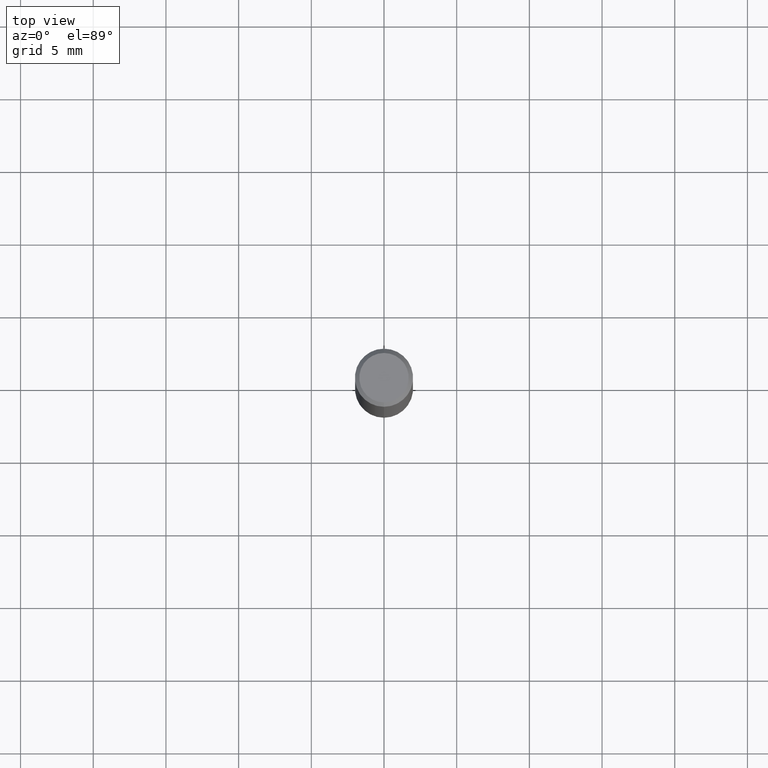
[diagram: clean part render]
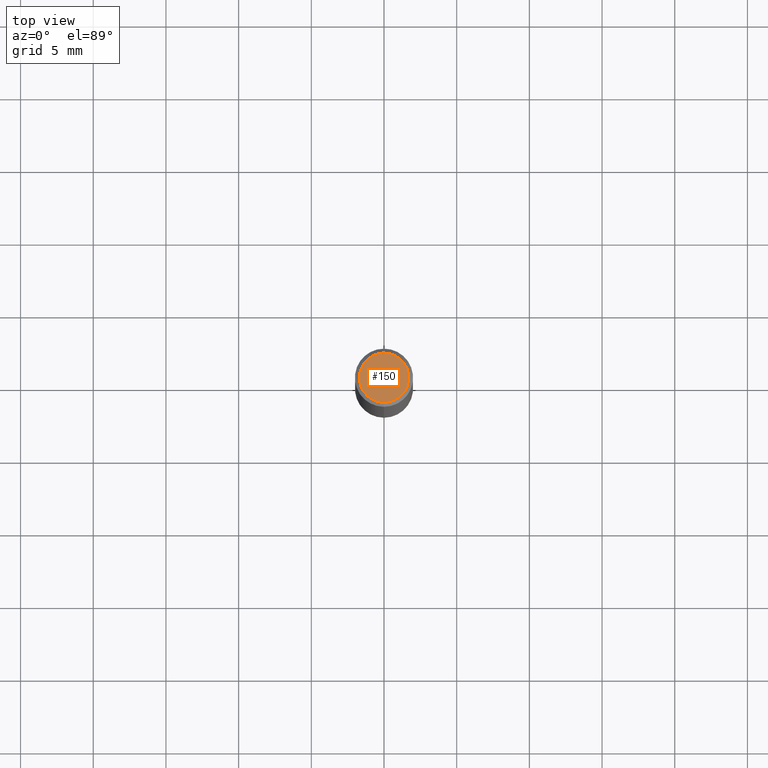
[diagram: same view with one face highlighted and labeled with its STEP entity id]
A machine part, top view. The second image highlights one B-rep face of the part: STEP entity #150.
In plain terms, the highlighted planar face has unit normal (-0, 0, 1).
Its self-contained STEP definition (entity closure, byte-faithful):
#96=VERTEX_POINT('',#224);
#150=ADVANCED_FACE('',(#284),#285,.T.);
#156=EDGE_CURVE('',#168,#96,#292,.T.);
#160=EDGE_CURVE('',#96,#168,#296,.T.);
#168=VERTEX_POINT('',#305);
#224=CARTESIAN_POINT('',(2.08183080149804E-016,-1.7,0.0));
#284=FACE_OUTER_BOUND('',#435,.T.);
#285=PLANE('',#436);
#292=CIRCLE('',#444,1.7);
#296=CIRCLE('',#449,1.7);
#305=CARTESIAN_POINT('',(0.0,1.7,0.0));
#435=EDGE_LOOP('',(#594,#595));
#436=AXIS2_PLACEMENT_3D('',#596,#597,#598);
#444=AXIS2_PLACEMENT_3D('',#607,#608,#609);
#449=AXIS2_PLACEMENT_3D('',#610,#611,#612);
#594=ORIENTED_EDGE('',*,*,#156,.F.);
#595=ORIENTED_EDGE('',*,*,#160,.F.);
#596=CARTESIAN_POINT('',(0.0,0.85,0.0));
#597=DIRECTION('',(-0.0,0.0,1.0));
#598=DIRECTION('',(0.0,-1.0,0.0));
#607=CARTESIAN_POINT('',(0.0,0.0,0.0));
#608=DIRECTION('',(0.0,0.0,-1.0));
#609=DIRECTION('',(0.0,1.0,0.0));
#610=CARTESIAN_POINT('',(0.0,0.0,0.0));
#611=DIRECTION('',(0.0,0.0,-1.0));
#612=DIRECTION('',(0.0,1.0,0.0));